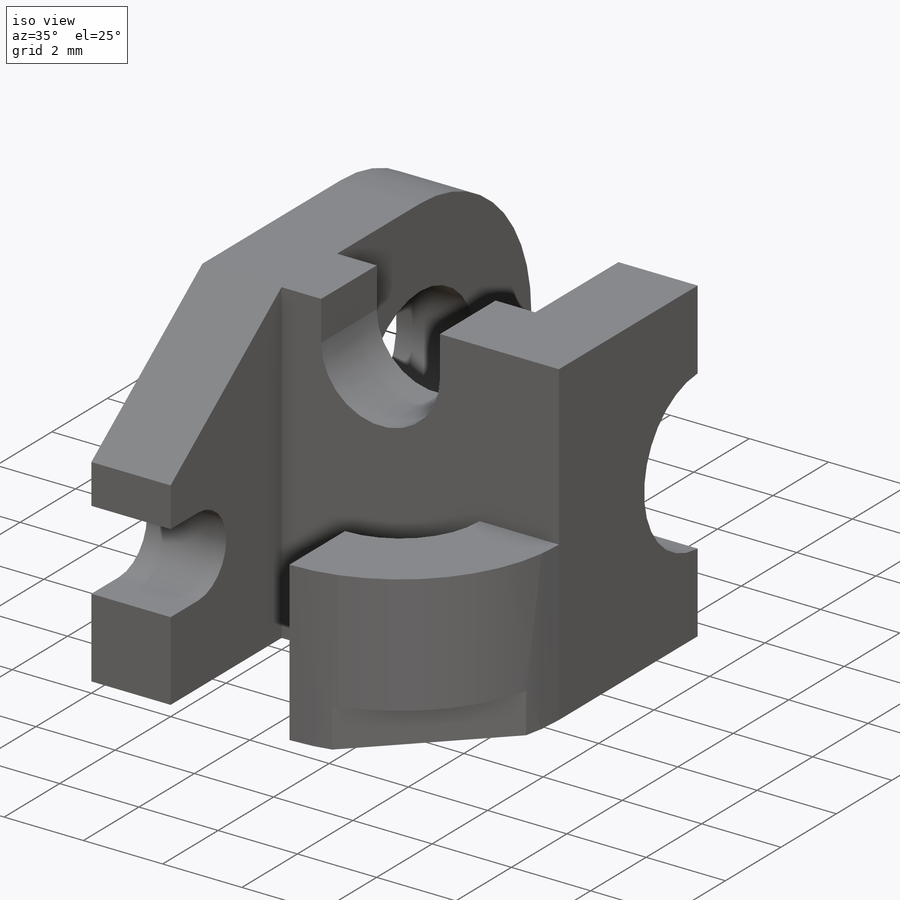
[diagram: iso view]
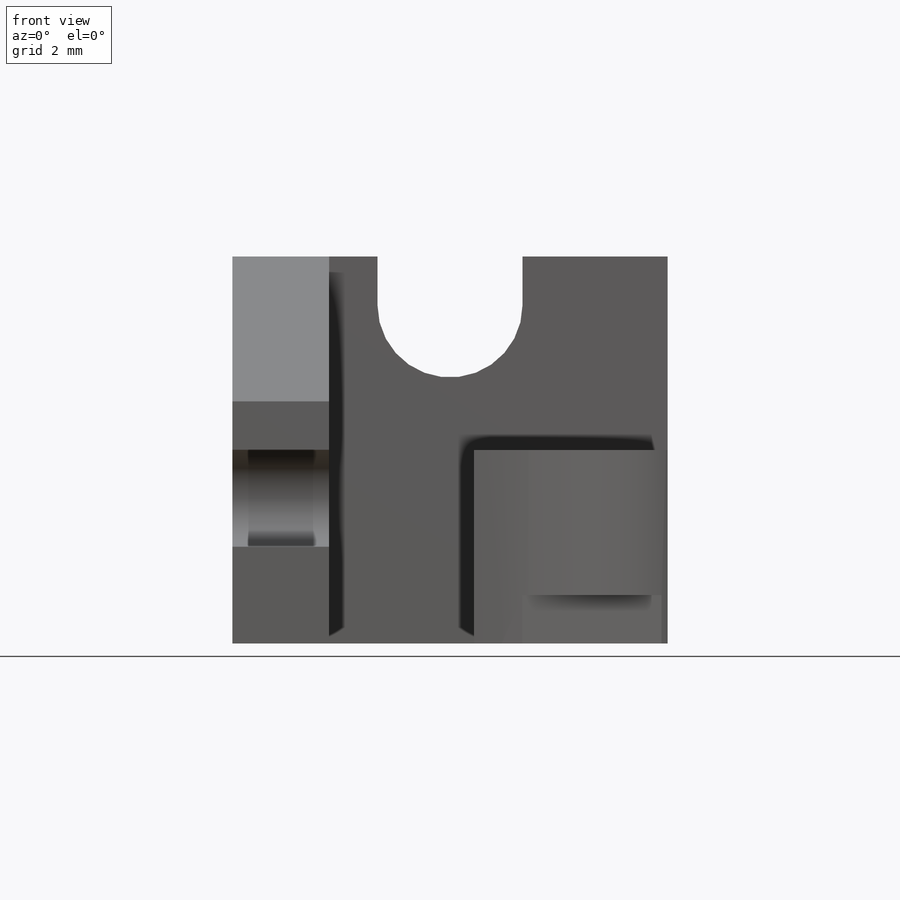
[diagram: front view]
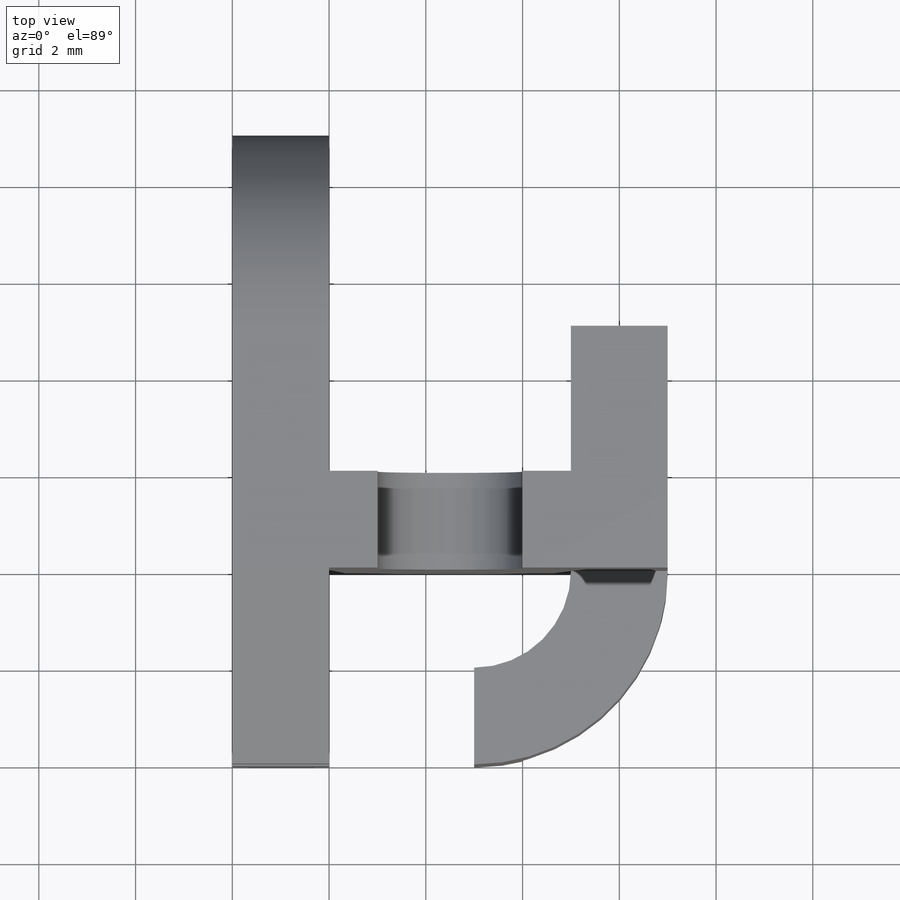
[diagram: top view]
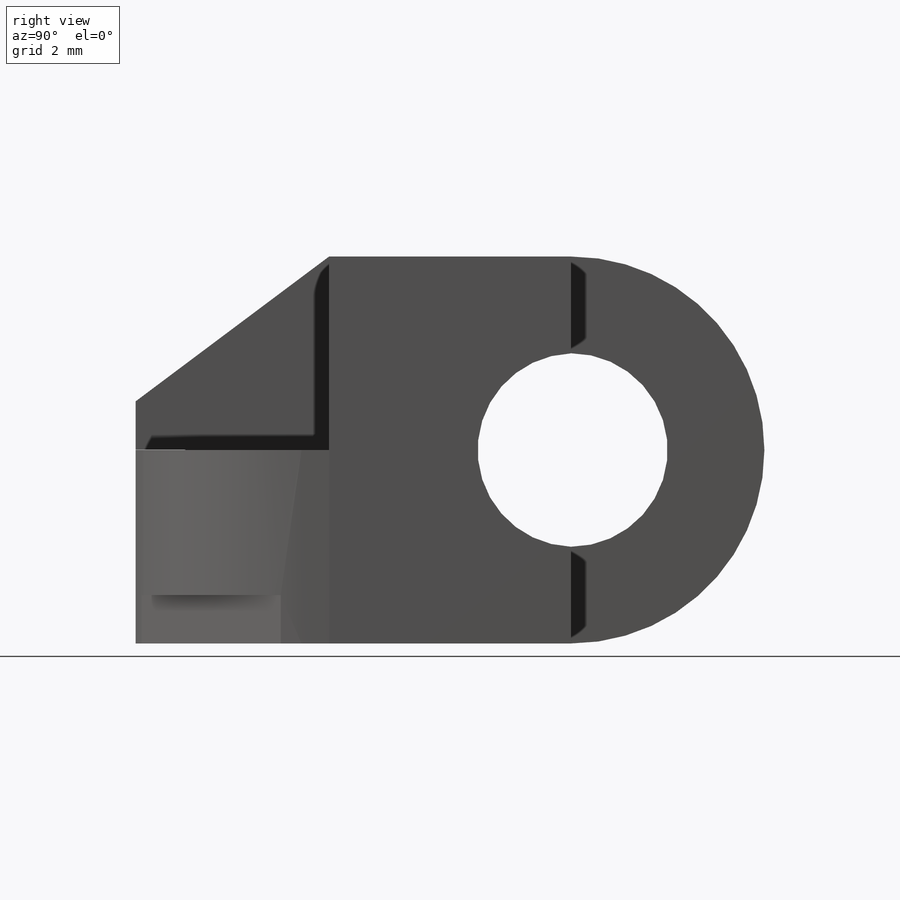
[diagram: right view]
SOLIDWORKS PART (.sldprt)
format: sldprt  version: not decoded by parser v0  size: 259,072 bytes
history: native  units: mm
features: sketch x6, extrude x5, material x1, cut_extrude x1 (+13 scaffold rows collapsed)
feature tree (26):
  scaffold x13  (default folders/planes/origin — collapsed)
  material  "Material <not specified>"
  sketch  "Sketch1"  dims[D1=3.0mm D2=3.0mm D3=1.0mm D4=1.0mm D5=3.0mm D6=8.0mm]
  extrude  "Boss-Extrude1"  Depth=2mm
  sketch  "Sketch2"  dims[D1=3.0mm D2=~2.002574mm D3=2.0mm D4=2.0mm]
  extrude  "Boss-Extrude2"  Depth=2mm
  sketch  "Sketch3"  dims[D1=4.0mm]
  extrude  "Boss-Extrude3"  Depth=2mm
  sketch  "Sketch4"  dims[D6=~1.002807mm D1=4.0mm D2=2.0mm D3=1.0mm D4=1.0mm D5=1.0mm]
  extrude  "Boss-Extrude4"  Depth=2mm
  sketch  "Sketch5"  dims[D5=2.0mm D6=4.0mm D1=2.0mm D2=2.0mm D3=2.0mm D4=4.0mm]
  extrude  "Boss-Extrude5"  Depth=4mm
  sketch  "Sketch6"  dims[D1=1.0mm D2=1.0mm]
  cut_extrude  "Cut-Extrude1"  Depth=1mm
decode coverage: 12 of 12 modeling features carry decoded parameters
note: ~ marks probable driven/reference dimensions
note: suppression state not decoded; provenance and decode notes live in map.json
